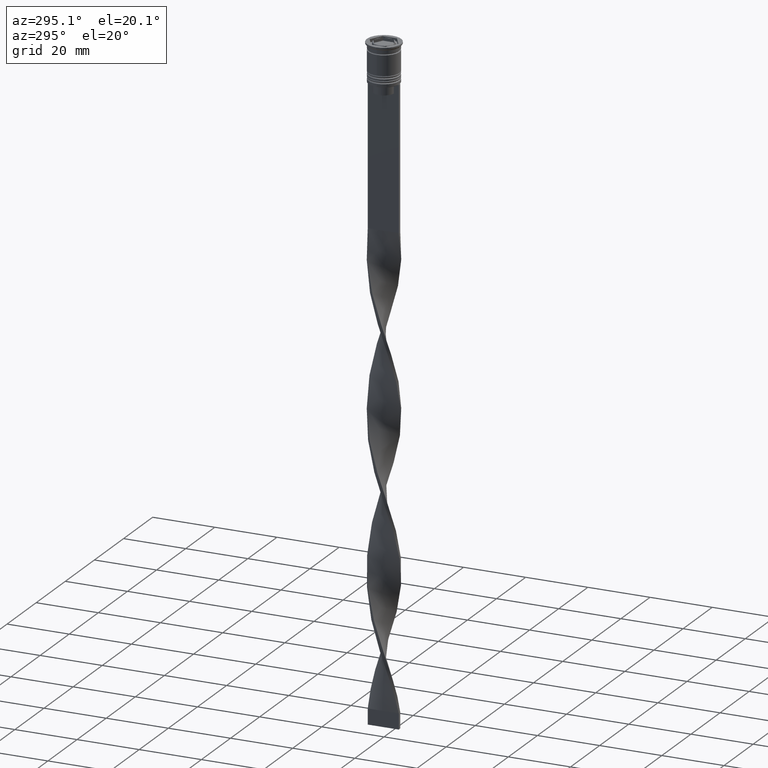
[diagram: clean part render]
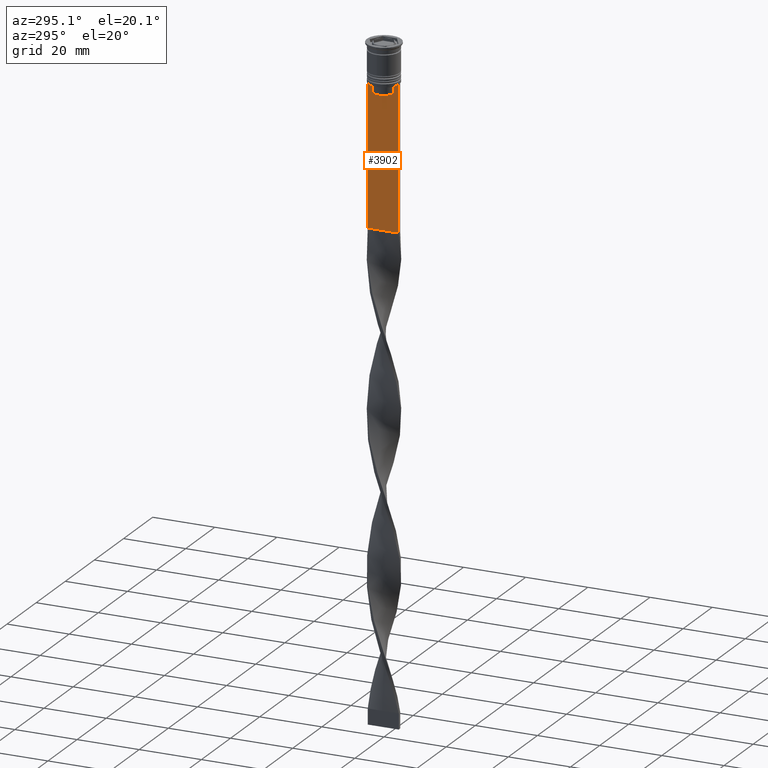
[diagram: same view with one face highlighted and labeled with its STEP entity id]
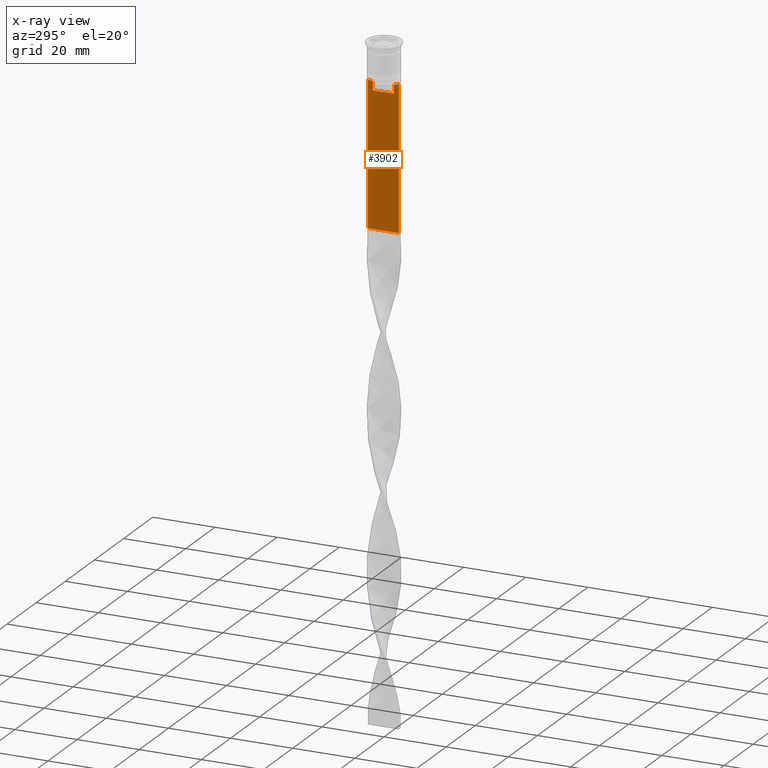
[diagram: x-ray of the same camera — body ghosted, the highlighted face saturated]
A machine part, auxiliary view. The second image highlights one B-rep face of the part: STEP entity #3902.
The next image is the same camera in x-ray: the body ghosted, the highlighted face saturated — about 0% of this face is hidden behind the body in this view.
In plain terms, the highlighted planar face has unit normal (-1, 0, 0).
Its self-contained STEP definition (entity closure, byte-faithful):
#44 = ORIENTED_EDGE ( 'NONE', *, *, #2681, .F. ) ;
#131 = LINE ( 'NONE', #1352, #3690 ) ;
#169 = ORIENTED_EDGE ( 'NONE', *, *, #3300, .F. ) ;
#218 = VERTEX_POINT ( 'NONE', #3125 ) ;
#224 = VECTOR ( 'NONE', #879, 1000.000000000000000 ) ;
#273 = EDGE_CURVE ( 'NONE', #218, #1104, #485, .T. ) ;
#328 = VERTEX_POINT ( 'NONE', #2070 ) ;
#336 = CARTESIAN_POINT ( 'NONE',  ( -0.5000000000000000000, 3.531412678228260216, -12.83345231756357840 ) ) ;
#444 = CARTESIAN_POINT ( 'NONE',  ( -0.5000000000000000000, -4.999999999999999112, -12.50000000000000000 ) ) ;
#485 = LINE ( 'NONE', #444, #1935 ) ;
#526 = EDGE_CURVE ( 'NONE', #3878, #1971, #3887, .T. ) ;
#622 = EDGE_CURVE ( 'NONE', #1575, #3917, #3298, .T. ) ;
#624 = AXIS2_PLACEMENT_3D ( 'NONE', #752, #3485, #3508 ) ;
#661 = CARTESIAN_POINT ( 'NONE',  ( -0.5000000000000000000, 3.867815921162742754, -12.50000000000000000 ) ) ;
#698 = CARTESIAN_POINT ( 'NONE',  ( -0.5000000000000000000, 4.874423042781575788, -12.50000000000000000 ) ) ;
#752 = CARTESIAN_POINT ( 'NONE',  ( -0.5000000000000000000, -4.999999999999999112, -2.450124378879110054 ) ) ;
#802 = VECTOR ( 'NONE', #3651, 1000.000000000000000 ) ;
#879 = DIRECTION ( 'NONE',  ( 0.000000000000000000, -1.000000000000000000, 0.000000000000000000 ) ) ;
#933 = ORIENTED_EDGE ( 'NONE', *, *, #1053, .F. ) ;
#937 = B_SPLINE_CURVE_WITH_KNOTS ( 'NONE', 3,
 ( #661, #2393, #336, #1495 ),
 .UNSPECIFIED., .F., .F.,
 ( 4, 4 ),
 ( 0.006644825462451552783, 0.007355321358912435097 ),
 .UNSPECIFIED. ) ;
#965 = ORIENTED_EDGE ( 'NONE', *, *, #1964, .F. ) ;
#982 = VECTOR ( 'NONE', #1749, 1000.000000000000000 ) ;
#1044 = LINE ( 'NONE', #3532, #3942 ) ;
#1053 = EDGE_CURVE ( 'NONE', #1104, #3411, #131, .T. ) ;
#1062 = PLANE ( 'NONE',  #624 ) ;
#1089 = EDGE_LOOP ( 'NONE', ( #1547, #933, #2417, #1721, #169, #1207, #3903, #1652, #44, #965, #1221, #1680 ) ) ;
#1104 = VERTEX_POINT ( 'NONE', #698 ) ;
#1135 = LINE ( 'NONE', #1441, #224 ) ;
#1177 = EDGE_CURVE ( 'NONE', #3489, #1590, #3464, .T. ) ;
#1207 = ORIENTED_EDGE ( 'NONE', *, *, #1177, .F. ) ;
#1221 = ORIENTED_EDGE ( 'NONE', *, *, #2759, .F. ) ;
#1335 = CARTESIAN_POINT ( 'NONE',  ( -0.5000000000000000000, 5.000000000000000888, -2.450124378879110054 ) ) ;
#1338 = DIRECTION ( 'NONE',  ( 0.000000000000000000, -1.000000000000000000, 0.000000000000000000 ) ) ;
#1352 = CARTESIAN_POINT ( 'NONE',  ( -0.5000000000000000000, -4.999999999999999112, -12.50000000000000000 ) ) ;
#1355 = LINE ( 'NONE', #1335, #3880 ) ;
#1408 = VERTEX_POINT ( 'NONE', #2012 ) ;
#1441 = CARTESIAN_POINT ( 'NONE',  ( -0.5000000000000000000, 3.399999999999998135, -15.50000000000000000 ) ) ;
#1484 = CARTESIAN_POINT ( 'NONE',  ( -0.5000000000000000000, -3.699658232838647365, -12.66676999593996555 ) ) ;
#1495 = CARTESIAN_POINT ( 'NONE',  ( -0.5000000000000000000, 3.363034344160045208, -13.00000000000000178 ) ) ;
#1547 = ORIENTED_EDGE ( 'NONE', *, *, #3456, .F. ) ;
#1575 = VERTEX_POINT ( 'NONE', #3875 ) ;
#1576 = CARTESIAN_POINT ( 'NONE',  ( -0.5000000000000000000, -4.999999999999999112, -12.50000000000000000 ) ) ;
#1590 = VERTEX_POINT ( 'NONE', #2099 ) ;
#1652 = ORIENTED_EDGE ( 'NONE', *, *, #526, .F. ) ;
#1680 = ORIENTED_EDGE ( 'NONE', *, *, #622, .F. ) ;
#1721 = ORIENTED_EDGE ( 'NONE', *, *, #3084, .T. ) ;
#1749 = DIRECTION ( 'NONE',  ( 0.000000000000000000, 0.000000000000000000, -1.000000000000000000 ) ) ;
#1767 = LINE ( 'NONE', #3010, #3633 ) ;
#1934 = DIRECTION ( 'NONE',  ( 0.000000000000000000, 0.000000000000000000, -1.000000000000000000 ) ) ;
#1935 = VECTOR ( 'NONE', #1338, 1000.000000000000000 ) ;
#1957 = DIRECTION ( 'NONE',  ( 0.000000000000000000, 0.000000000000000000, -1.000000000000000000 ) ) ;
#1964 = EDGE_CURVE ( 'NONE', #328, #1408, #3170, .T. ) ;
#1967 = DIRECTION ( 'NONE',  ( 0.000000000000000000, -1.000000000000000000, 0.000000000000000000 ) ) ;
#1971 = VERTEX_POINT ( 'NONE', #3571 ) ;
#2012 = CARTESIAN_POINT ( 'NONE',  ( -0.5000000000000000000, -3.363034344160045208, -13.00000000000000178 ) ) ;
#2020 = CARTESIAN_POINT ( 'NONE',  ( -0.5000000000000000000, -3.363034344160045208, -13.00000000000000178 ) ) ;
#2070 = CARTESIAN_POINT ( 'NONE',  ( -0.5000000000000000000, -3.363034344160045652, -15.50000000000000000 ) ) ;
#2099 = CARTESIAN_POINT ( 'NONE',  ( -0.5000000000000000000, -4.999999999999999112, -58.50000000000000000 ) ) ;
#2227 = FACE_OUTER_BOUND ( 'NONE', #1089, .T. ) ;
#2393 = CARTESIAN_POINT ( 'NONE',  ( -0.5000000000000000000, 3.699657965831574913, -12.66677026074361301 ) ) ;
#2417 = ORIENTED_EDGE ( 'NONE', *, *, #273, .F. ) ;
#2488 = EDGE_CURVE ( 'NONE', #1971, #3489, #1044, .T. ) ;
#2506 = CARTESIAN_POINT ( 'NONE',  ( -0.5000000000000000000, 5.000000000000000888, -58.50000000000000000 ) ) ;
#2528 = CARTESIAN_POINT ( 'NONE',  ( -0.5000000000000000000, 3.363034344160045652, -15.50000000000000000 ) ) ;
#2579 = DIRECTION ( 'NONE',  ( 0.000000000000000000, -1.000000000000000000, 0.000000000000000000 ) ) ;
#2644 = CARTESIAN_POINT ( 'NONE',  ( -0.5000000000000000000, -3.531412985305424801, -12.83345201382502765 ) ) ;
#2663 = DIRECTION ( 'NONE',  ( 0.000000000000000000, 1.000000000000000000, 0.000000000000000000 ) ) ;
#2681 = EDGE_CURVE ( 'NONE', #1408, #3878, #3683, .T. ) ;
#2701 = CARTESIAN_POINT ( 'NONE',  ( -0.5000000000000000000, -4.999999999999999112, -12.50000000000000000 ) ) ;
#2759 = EDGE_CURVE ( 'NONE', #3917, #328, #1135, .T. ) ;
#2785 = CARTESIAN_POINT ( 'NONE',  ( -0.5000000000000000000, 3.867815921162742754, -12.50000000000000000 ) ) ;
#2851 = VECTOR ( 'NONE', #3924, 1000.000000000000000 ) ;
#2888 = VERTEX_POINT ( 'NONE', #2506 ) ;
#2896 = CARTESIAN_POINT ( 'NONE',  ( -0.5000000000000000000, -4.999999999999999112, -2.450124378879110054 ) ) ;
#3010 = CARTESIAN_POINT ( 'NONE',  ( -0.5000000000000000000, -4.999999999999999112, -58.50000000000000000 ) ) ;
#3084 = EDGE_CURVE ( 'NONE', #218, #2888, #1355, .T. ) ;
#3125 = CARTESIAN_POINT ( 'NONE',  ( -0.5000000000000000000, 5.000000000000000888, -12.50000000000000000 ) ) ;
#3170 = LINE ( 'NONE', #3767, #802 ) ;
#3298 = LINE ( 'NONE', #3892, #982 ) ;
#3300 = EDGE_CURVE ( 'NONE', #1590, #2888, #1767, .T. ) ;
#3321 = CARTESIAN_POINT ( 'NONE',  ( -0.5000000000000000000, -3.867815921162742754, -12.50000000000000000 ) ) ;
#3411 = VERTEX_POINT ( 'NONE', #2785 ) ;
#3456 = EDGE_CURVE ( 'NONE', #3411, #1575, #937, .T. ) ;
#3464 = LINE ( 'NONE', #2896, #3809 ) ;
#3485 = DIRECTION ( 'NONE',  ( -1.000000000000000000, 0.000000000000000000, 0.000000000000000000 ) ) ;
#3489 = VERTEX_POINT ( 'NONE', #1576 ) ;
#3508 = DIRECTION ( 'NONE',  ( 0.000000000000000000, 0.000000000000000000, 1.000000000000000000 ) ) ;
#3526 = CARTESIAN_POINT ( 'NONE',  ( -0.5000000000000000000, -3.867815921162742754, -12.50000000000000000 ) ) ;
#3532 = CARTESIAN_POINT ( 'NONE',  ( -0.5000000000000000000, -4.999999999999999112, -12.50000000000000000 ) ) ;
#3571 = CARTESIAN_POINT ( 'NONE',  ( -0.5000000000000000000, -4.874423042781575788, -12.50000000000000000 ) ) ;
#3633 = VECTOR ( 'NONE', #2663, 1000.000000000000000 ) ;
#3651 = DIRECTION ( 'NONE',  ( -0.000000000000000000, -0.000000000000000000, 1.000000000000000000 ) ) ;
#3683 = B_SPLINE_CURVE_WITH_KNOTS ( 'NONE', 3,
 ( #2020, #2644, #1484, #3321 ),
 .UNSPECIFIED., .F., .F.,
 ( 4, 4 ),
 ( 0.01632394437298965648, 0.01703543518243618576 ),
 .UNSPECIFIED. ) ;
#3690 = VECTOR ( 'NONE', #2579, 1000.000000000000000 ) ;
#3767 = CARTESIAN_POINT ( 'NONE',  ( -0.5000000000000000000, -3.363034344160045208, 0.000000000000000000 ) ) ;
#3809 = VECTOR ( 'NONE', #1957, 1000.000000000000000 ) ;
#3875 = CARTESIAN_POINT ( 'NONE',  ( -0.5000000000000000000, 3.363034344160045208, -13.00000000000000178 ) ) ;
#3878 = VERTEX_POINT ( 'NONE', #3526 ) ;
#3880 = VECTOR ( 'NONE', #1934, 1000.000000000000000 ) ;
#3887 = LINE ( 'NONE', #2701, #2851 ) ;
#3892 = CARTESIAN_POINT ( 'NONE',  ( -0.5000000000000000000, 3.363034344160045208, 0.000000000000000000 ) ) ;
#3902 = ADVANCED_FACE ( 'NONE', ( #2227 ), #1062, .T. ) ;
#3903 = ORIENTED_EDGE ( 'NONE', *, *, #2488, .F. ) ;
#3917 = VERTEX_POINT ( 'NONE', #2528 ) ;
#3924 = DIRECTION ( 'NONE',  ( 0.000000000000000000, -1.000000000000000000, 0.000000000000000000 ) ) ;
#3942 = VECTOR ( 'NONE', #1967, 1000.000000000000000 ) ;